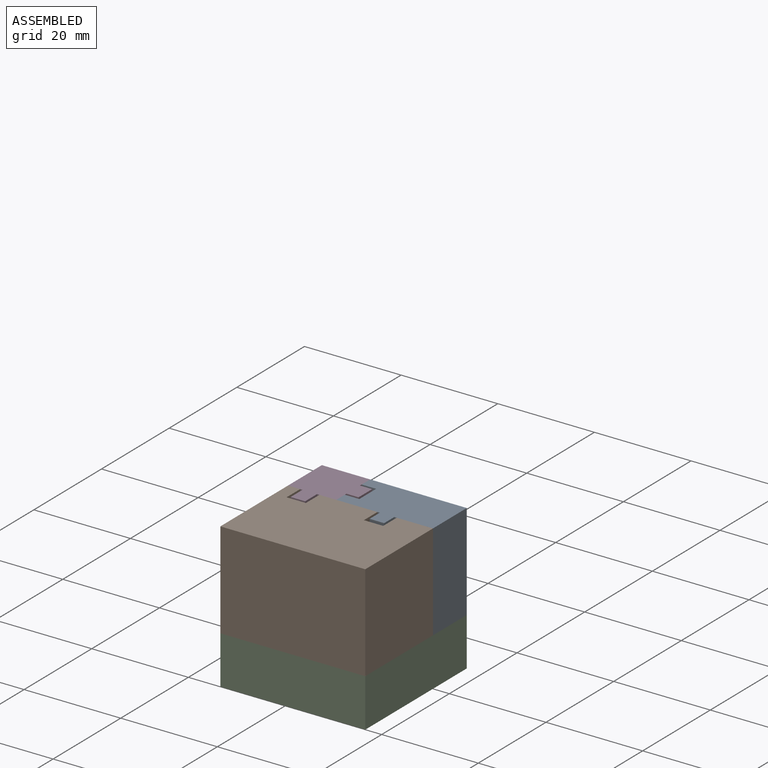
[diagram: assembled view]
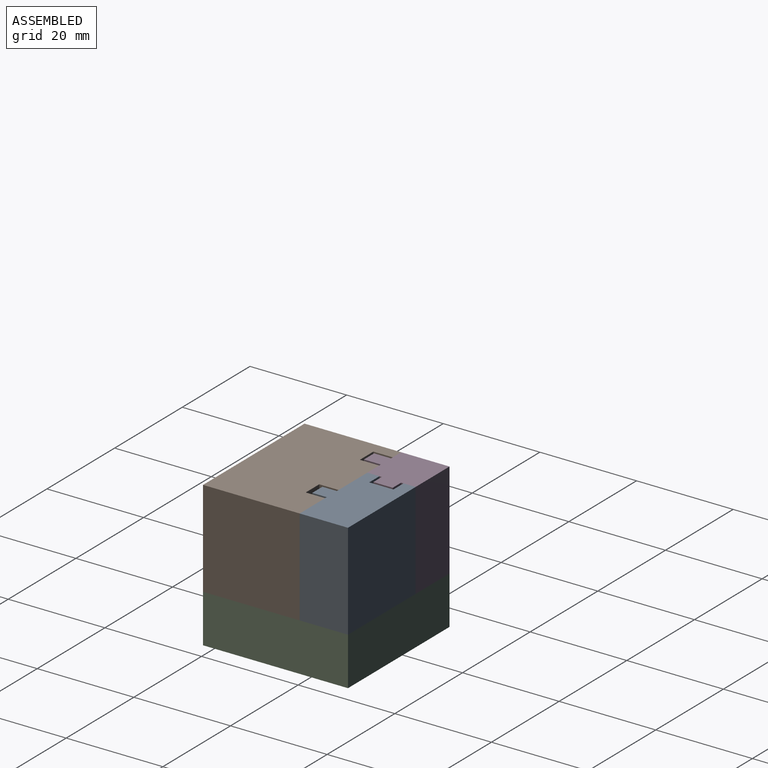
[diagram: assembled view, second angle]
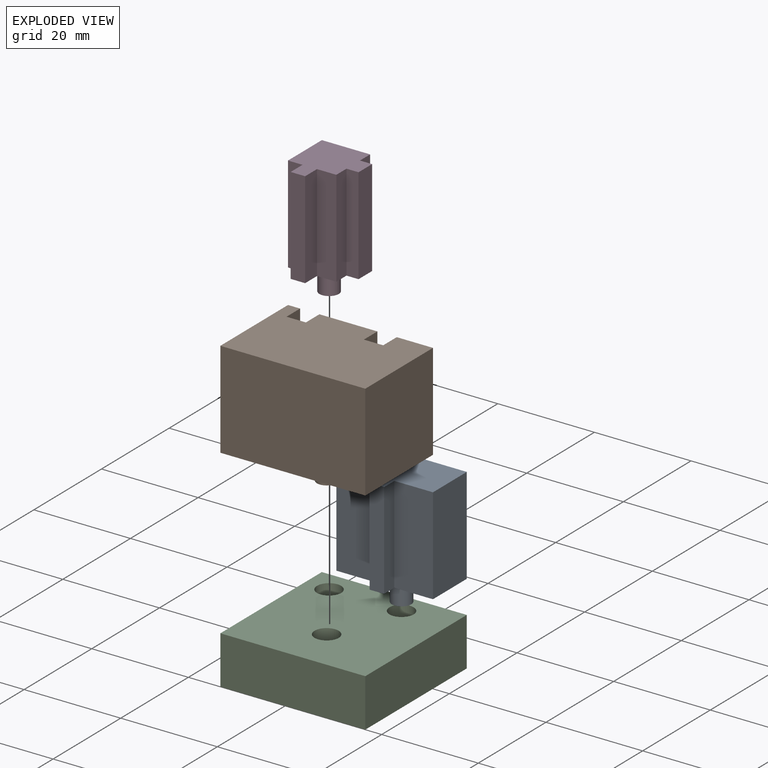
[diagram: exploded view]
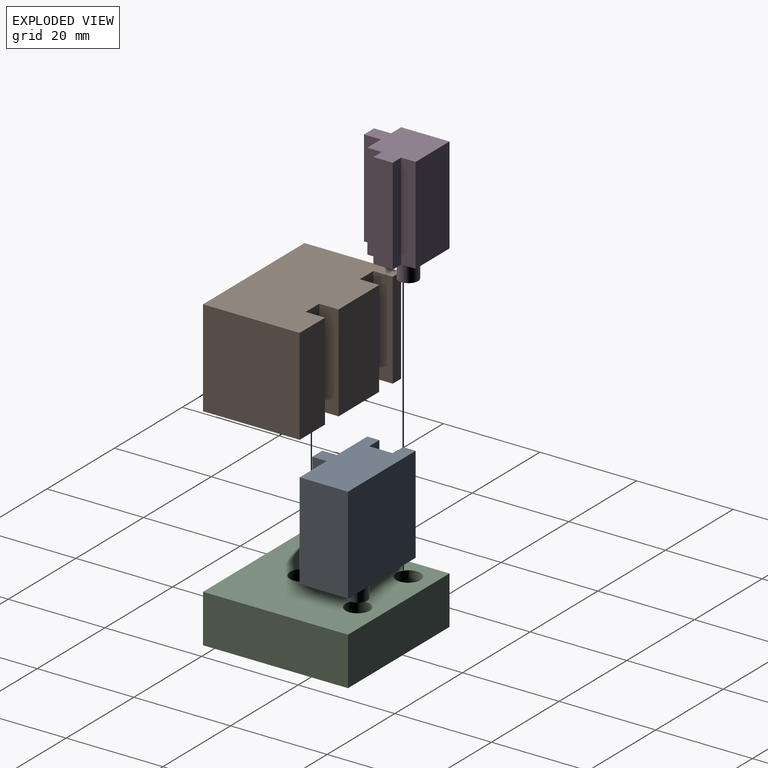
[diagram: exploded view, second angle]
ASSEMBLY  parts=4 mates=3
PART A: 16 faces, bbox 20x13x25 mm
  f0: plane 20x2.5mm, normal (-1,0,0), area 50mm2, adj f1,f5,f7,f13
  f1: plane 20x13mm, normal (0,0,1), area 194mm2, adj f0,f2,f3,f4,f5,f6,f10,f11
  f2: plane 20x8mm, normal (0,-1,0), area 160mm2, adj f1,f6,f7,f11
  f3: plane 20x20mm, normal (0,1,0), area 400mm2, adj f1,f4,f6,f7
  f4: plane 20x2.5mm, normal (-1,0,0), area 50mm2, adj f1,f3,f7,f15
  f5: plane 20x9mm, normal (0,-1,0), area 180mm2, adj f0,f1,f7,f12
  f6: plane 20x10mm, normal (1,0,0), area 200mm2, adj f1,f2,f3,f7
  f7: plane 20x13mm, normal (0,0,-1), area 181.4mm2, adj f0,f2,f3,f4,f5,f6,f8,f10
  f8: cylinder r=2mm len=5mm, axis (0,0,1), area 62.8mm2, adj f7,f9
  f9: plane 4x4mm, normal (0,0,-1), area 12.6mm2, adj f8
  f10: plane 20x3mm, normal (0,-1,0), area 60mm2, adj f1,f7,f11,f12
  f11: plane 20x3mm, normal (1,0,0), area 60mm2, adj f1,f2,f7,f10
  f12: plane 20x3mm, normal (-1,0,0), area 60mm2, adj f1,f5,f7,f10
  f13: plane 20x3mm, normal (0,1,0), area 60mm2, adj f0,f1,f7,f14
  f14: plane 20x5mm, normal (-1,0,0), area 100mm2, adj f1,f7,f13,f15
  f15: plane 20x3mm, normal (0,-1,0), area 60mm2, adj f1,f4,f7,f14
PART B: 16 faces, bbox 30x20x25 mm
  f0: plane 20x2.5mm, normal (0,1,0), area 50mm2, adj f2,f3,f5,f13
  f1: plane 20x12mm, normal (0,1,0), area 240mm2, adj f2,f3,f8,f12
  f2: plane 30x20mm, normal (0,0,1), area 568mm2, adj f0,f1,f4,f5,f6,f7,f8,f9
  f3: plane 30x20mm, normal (0,0,-1), area 555.4mm2, adj f0,f1,f4,f5,f6,f7,f8,f9
  f4: plane 20x7.5mm, normal (0,1,0), area 150mm2, adj f2,f3,f7,f10
  f5: plane 20x20mm, normal (-1,0,0), area 400mm2, adj f0,f2,f3,f6
  f6: plane 30x20mm, normal (0,-1,0), area 600mm2, adj f2,f3,f5,f7
  f7: plane 20x20mm, normal (1,0,0), area 400mm2, adj f2,f3,f4,f6
  f8: plane 20x4mm, normal (1,0,0), area 80mm2, adj f1,f2,f3,f9
  f9: plane 20x4mm, normal (0,1,0), area 80mm2, adj f2,f3,f8,f10
  f10: plane 20x4mm, normal (-1,0,0), area 80mm2, adj f2,f3,f4,f9
  f11: plane 20x4mm, normal (0,1,0), area 80mm2, adj f2,f3,f12,f13
  f12: plane 20x4mm, normal (-1,0,0), area 80mm2, adj f1,f2,f3,f11
  f13: plane 20x4mm, normal (1,0,0), area 80mm2, adj f0,f2,f3,f11
  f14: cylinder r=2mm len=5mm, axis (0,0,1), area 62.8mm2, adj f3,f15
  f15: plane 4x4mm, normal (0,0,-1), area 12.6mm2, adj f14
PART C: 12 faces, bbox 30x30x10 mm
  f0: plane 30x10mm, normal (0,1,0), area 300mm2, adj f1,f3,f4,f5
  f1: plane 30x10mm, normal (-1,0,0), area 300mm2, adj f0,f2,f4,f5
  f2: plane 30x10mm, normal (0,-1,0), area 300mm2, adj f1,f3,f4,f5
  f3: plane 30x10mm, normal (1,0,0), area 300mm2, adj f0,f2,f4,f5
  f4: plane 30x30mm, normal (0,0,1), area 841.1mm2, adj f0,f1,f2,f3,f6,f8,f10
  f5: plane 30x30mm, normal (0,0,-1), area 900mm2, adj f0,f1,f2,f3
  f6: cylinder r=2.5mm len=5mm, axis (0,0,1), area 78.5mm2, adj f4,f7
  f7: plane 5x5mm, normal (0,0,1), area 19.6mm2, adj f6
  f8: cylinder r=2.5mm len=5mm, axis (0,0,1), area 78.5mm2, adj f4,f9
  f9: plane 5x5mm, normal (0,0,1), area 19.6mm2, adj f8
  f10: cylinder r=2.5mm len=5mm, axis (0,0,1), area 78.5mm2, adj f4,f11
  f11: plane 5x5mm, normal (0,0,1), area 19.6mm2, adj f10
PART D: 16 faces, bbox 13.5x12.5x25 mm
  f0: plane 20x3mm, normal (0,-1,0), area 60mm2, adj f5,f6,f12,f15
  f1: plane 20x4mm, normal (-1,0,0), area 80mm2, adj f4,f5,f6,f8
  f2: plane 20x10mm, normal (0,1,0), area 200mm2, adj f3,f5,f6,f15
  f3: plane 20x3mm, normal (-1,0,0), area 60mm2, adj f2,f5,f6,f9
  f4: plane 20x3mm, normal (0,-1,0), area 60mm2, adj f1,f5,f6,f11
  f5: plane 13.5x12.5mm, normal (0,0,1), area 120.5mm2, adj f0,f1,f2,f3,f4,f7,f8,f9
  f6: plane 13.5x12.5mm, normal (0,0,-1), area 107.9mm2, adj f0,f1,f2,f3,f4,f7,f8,f9
  f7: plane 20x3mm, normal (-1,0,0), area 60mm2, adj f5,f6,f8,f9
  f8: plane 20x3.5mm, normal (0,-1,0), area 70mm2, adj f1,f5,f6,f7
  f9: plane 20x3.5mm, normal (0,1,0), area 70mm2, adj f3,f5,f6,f7
  f10: plane 20x4mm, normal (0,-1,0), area 80mm2, adj f5,f6,f11,f12
  f11: plane 20x2.5mm, normal (-1,0,0), area 50mm2, adj f4,f5,f6,f10
  f12: plane 20x2.5mm, normal (1,0,0), area 50mm2, adj f0,f5,f6,f10
  f13: cylinder r=2mm len=5mm, axis (0,0,1), area 62.8mm2, adj f6,f14
  f14: plane 4x4mm, normal (0,0,-1), area 12.6mm2, adj f13
  f15: plane 20x10mm, normal (1,0,0), area 200mm2, adj f0,f2,f5,f6
PLACE A t=(-2.42,-1.38,18.74)mm
PLACE B t=(-12.42,-21.38,18.74)mm
PLACE C t=(-12.42,-21.38,8.74)mm
PLACE D rot(axis=(0,0,1),90deg) t=(-2.42,-1.38,18.74)mm
MATE fastened D.f13 <-> C.f10  axis (0,0,-1) through (-7.42,3.62,13.74)mm
MATE fastened A.f8 <-> C.f8  axis (0,0,-1) through (7.58,3.62,13.74)mm
MATE fastened B.f14 <-> C.f6  axis (0,0,-1) through (2.58,-11.38,18.74)mm
